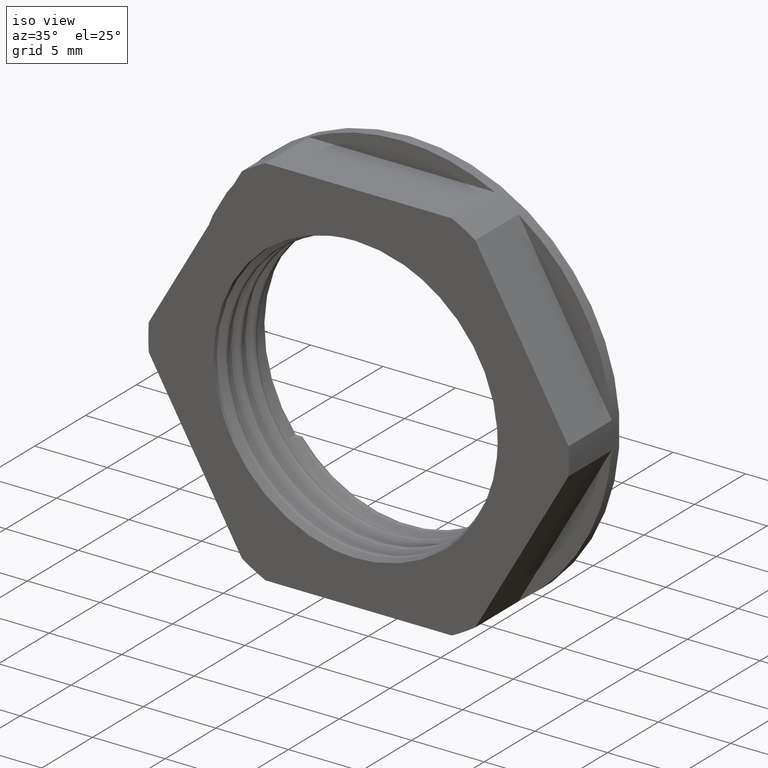
[diagram: clean part render]
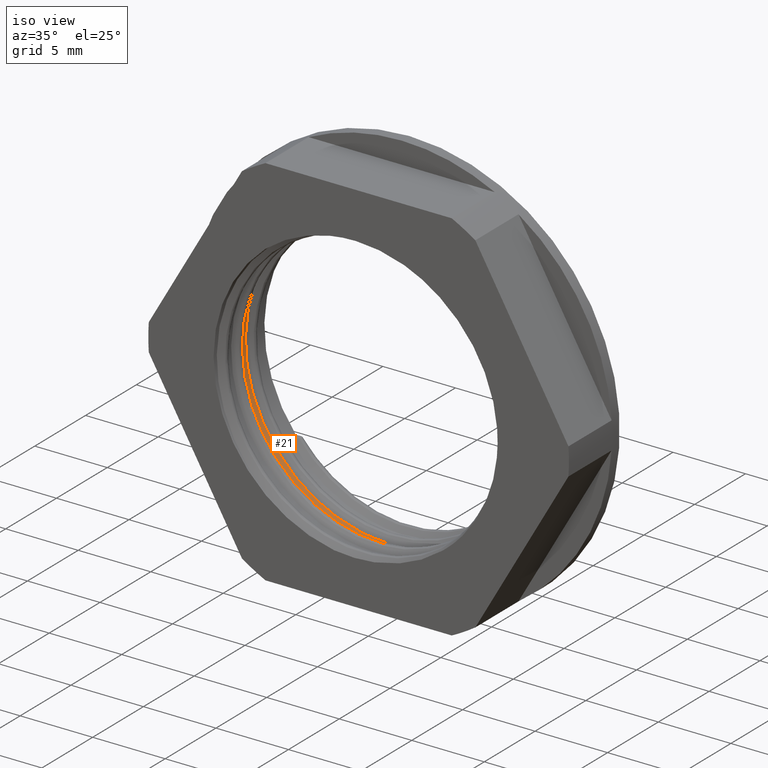
[diagram: same view with one face highlighted and labeled with its STEP entity id]
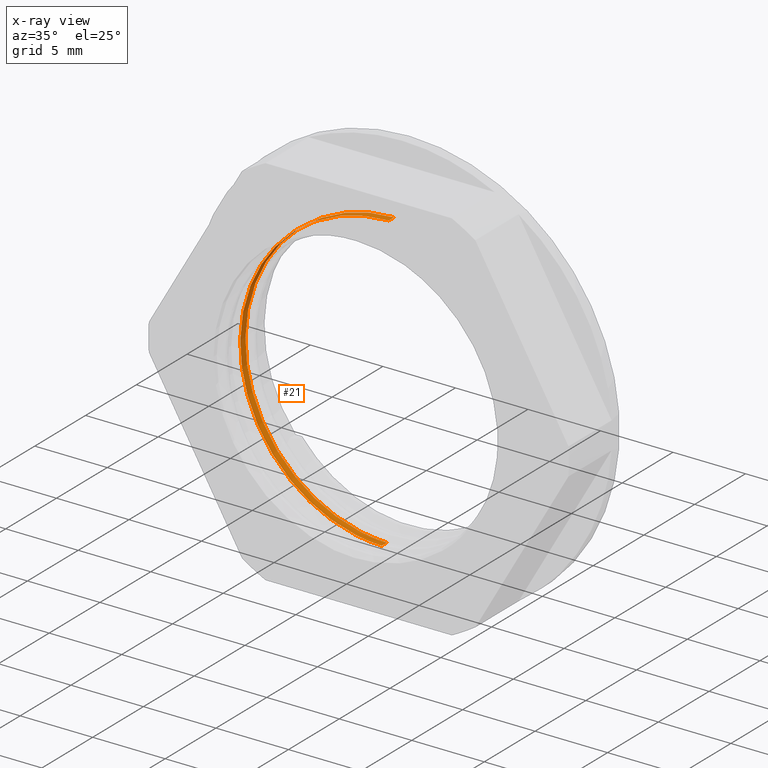
[diagram: x-ray of the same camera — body ghosted, the highlighted face saturated]
A machine part, iso view. The second image highlights one B-rep face of the part: STEP entity #21.
The next image is the same camera in x-ray: the body ghosted, the highlighted face saturated — about 2% of this face is hidden behind the body in this view.
In plain terms, the highlighted cylindrical surface (partial cylindrical patch) has radius 10 mm, axis along (0, 1, 0).
Its self-contained STEP definition (entity closure, byte-faithful):
#21 = ADVANCED_FACE ( 'NONE', ( #196 ), #218, .F. ) ;
#36 = EDGE_CURVE ( 'NONE', #788, #793, #1654, .T. ) ;
#58 = EDGE_CURVE ( 'NONE', #774, #743, #1762, .T. ) ;
#64 = EDGE_CURVE ( 'NONE', #793, #743, #2260, .T. ) ;
#77 = EDGE_CURVE ( 'NONE', #788, #774, #2277, .T. ) ;
#188 = DIRECTION ( 'NONE',  ( 0.0000000000000000000, 0.0000000000000000000, 1.000000000000000000 ) ) ;
#196 = FACE_OUTER_BOUND ( 'NONE', #960, .T. ) ;
#213 = DIRECTION ( 'NONE',  ( 0.0000000000000000000, 1.000000000000000000, 0.0000000000000000000 ) ) ;
#218 = CYLINDRICAL_SURFACE ( 'NONE', #1315, 10.00000000000000000 ) ;
#229 = CARTESIAN_POINT ( 'NONE',  ( 0.0000000000000000000, -20.94999999999999900, 0.0000000000000000000 ) ) ;
#743 = VERTEX_POINT ( 'NONE', #2133 ) ;
#774 = VERTEX_POINT ( 'NONE', #2173 ) ;
#788 = VERTEX_POINT ( 'NONE', #2193 ) ;
#793 = VERTEX_POINT ( 'NONE', #2191 ) ;
#806 = ORIENTED_EDGE ( 'NONE', *, *, #77, .T. ) ;
#815 = ORIENTED_EDGE ( 'NONE', *, *, #64, .F. ) ;
#818 = ORIENTED_EDGE ( 'NONE', *, *, #58, .T. ) ;
#841 = ORIENTED_EDGE ( 'NONE', *, *, #36, .F. ) ;
#960 = EDGE_LOOP ( 'NONE', ( #806, #818, #815, #841 ) ) ;
#1308 = VECTOR ( 'NONE', #1661, 1000.000000000000000 ) ;
#1315 = AXIS2_PLACEMENT_3D ( 'NONE', #229, #213, #188 ) ;
#1330 = VECTOR ( 'NONE', #1766, 1000.000000000000000 ) ;
#1654 = LINE ( 'NONE', #1680, #1308 ) ;
#1661 = DIRECTION ( 'NONE',  ( 0.0000000000000000000, 1.000000000000000000, 0.0000000000000000000 ) ) ;
#1680 = CARTESIAN_POINT ( 'NONE',  ( 0.0000000000000000000, -20.94999999999999900, 10.00000000000000000 ) ) ;
#1762 = LINE ( 'NONE', #1780, #1330 ) ;
#1766 = DIRECTION ( 'NONE',  ( 0.0000000000000000000, 1.000000000000000000, 0.0000000000000000000 ) ) ;
#1780 = CARTESIAN_POINT ( 'NONE',  ( 1.224646799147353300E-015, -20.94999999999999900, -10.00000000000000000 ) ) ;
#1812 = CARTESIAN_POINT ( 'NONE',  ( -4.142135623739649800, -13.07925387488099600, -9.999999999991295900 ) ) ;
#1813 = CARTESIAN_POINT ( 'NONE',  ( -9.999999999999998200, -12.90300387488126400, -4.142135623730950100 ) ) ;
#1815 = CARTESIAN_POINT ( 'NONE',  ( -9.999999999999998200, -12.81487887488125200, 0.0000000000000000000 ) ) ;
#1817 = CARTESIAN_POINT ( 'NONE',  ( -7.071067811865474600, -12.63862887488125300, 7.071067811865474600 ) ) ;
#1821 = CARTESIAN_POINT ( 'NONE',  ( -9.999999999999998200, -12.72675387488124500, 4.142135623730956300 ) ) ;
#1828 = CARTESIAN_POINT ( 'NONE',  ( 1.836970198721031200E-015, -12.46237887488125700, 10.00000000000000200 ) ) ;
#1829 = CARTESIAN_POINT ( 'NONE',  ( -2.100588639476810300E-011, -13.16737887488080400, -9.999999999999998200 ) ) ;
#1833 = CARTESIAN_POINT ( 'NONE',  ( -7.071067811865474600, -12.99112887488125500, -7.071067811865474600 ) ) ;
#1836 = CARTESIAN_POINT ( 'NONE',  ( -4.142135623730953700, -12.55050387488125300, 9.999999999999998200 ) ) ;
#1862 = CARTESIAN_POINT ( 'NONE',  ( -7.071067811865476400, -13.50137112511970400, -7.071067811865476400 ) ) ;
#1869 = CARTESIAN_POINT ( 'NONE',  ( -10.00000000000000000, -13.23699612511969900, 4.142135623730957200 ) ) ;
#1870 = CARTESIAN_POINT ( 'NONE',  ( -4.142135623730954600, -13.06074612511969400, 10.00000000000000000 ) ) ;
#1871 = CARTESIAN_POINT ( 'NONE',  ( -10.00000000000000200, -13.32512112511970600, 0.0000000000000000000 ) ) ;
#1875 = CARTESIAN_POINT ( 'NONE',  ( -7.071067811865476400, -13.14887112511970800, 7.071067811865476400 ) ) ;
#1882 = CARTESIAN_POINT ( 'NONE',  ( -4.142135623730951000, -13.58949612511969600, -10.00000000000000000 ) ) ;
#1886 = CARTESIAN_POINT ( 'NONE',  ( -10.00000000000000000, -13.41324612511970400, -4.142135623730951000 ) ) ;
#1890 = CARTESIAN_POINT ( 'NONE',  ( 1.836970198721029600E-015, -12.97262112511970900, 9.999999999999998200 ) ) ;
#1892 = CARTESIAN_POINT ( 'NONE',  ( -6.123233995736770200E-016, -13.67762112511970700, -10.00000000000000000 ) ) ;
#2133 = CARTESIAN_POINT ( 'NONE',  ( -2.100588639476810300E-011, -13.16737887488080400, -9.999999999999998200 ) ) ;
#2173 = CARTESIAN_POINT ( 'NONE',  ( -6.123233995736770200E-016, -13.67762112511970700, -10.00000000000000000 ) ) ;
#2191 = CARTESIAN_POINT ( 'NONE',  ( 1.836970198721031200E-015, -12.46237887488125700, 10.00000000000000200 ) ) ;
#2193 = CARTESIAN_POINT ( 'NONE',  ( 1.836970198721029600E-015, -12.97262112511970900, 9.999999999999998200 ) ) ;
#2260 =( BOUNDED_CURVE ( )  B_SPLINE_CURVE ( 2, ( #1828, #1836, #1817, #1821, #1815, #1813, #1833, #1812, #1829 ),
 .UNSPECIFIED., .F., .T. ) 
 B_SPLINE_CURVE_WITH_KNOTS ( ( 3, 2, 2, 2, 3 ),
 ( 0.05558636133795685100, 0.06348914919074356800, 0.07139193704353029300, 0.07929472489631700400, 0.08719751274910372800 ),
 .UNSPECIFIED. ) 
 CURVE ( )  GEOMETRIC_REPRESENTATION_ITEM ( )  RATIONAL_B_SPLINE_CURVE ( ( 1.000000000000000000, 0.9238795325112869600, 1.000000000000000000, 0.9238795325112869600, 1.000000000000000000, 0.9238795325112869600, 1.000000000000000000, 0.9238795325114959000, 0.9999999999997910600 ) ) 
 REPRESENTATION_ITEM ( '' )  );
#2277 =( BOUNDED_CURVE ( )  B_SPLINE_CURVE ( 2, ( #1890, #1870, #1875, #1869, #1871, #1886, #1862, #1882, #1892 ),
 .UNSPECIFIED., .F., .T. ) 
 B_SPLINE_CURVE_WITH_KNOTS ( ( 3, 2, 2, 2, 3 ),
 ( 0.1187021337210558100, 0.1266048147533807800, 0.1345074957857057600, 0.1424101768180307300, 0.1503128578503557000 ),
 .UNSPECIFIED. ) 
 CURVE ( )  GEOMETRIC_REPRESENTATION_ITEM ( )  RATIONAL_B_SPLINE_CURVE ( ( 1.000000000000000000, 0.9238795325112869600, 1.000000000000000000, 0.9238795325112869600, 1.000000000000000000, 0.9238795325112869600, 1.000000000000000000, 0.9238795325112869600, 1.000000000000000000 ) ) 
 REPRESENTATION_ITEM ( '' )  );